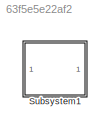
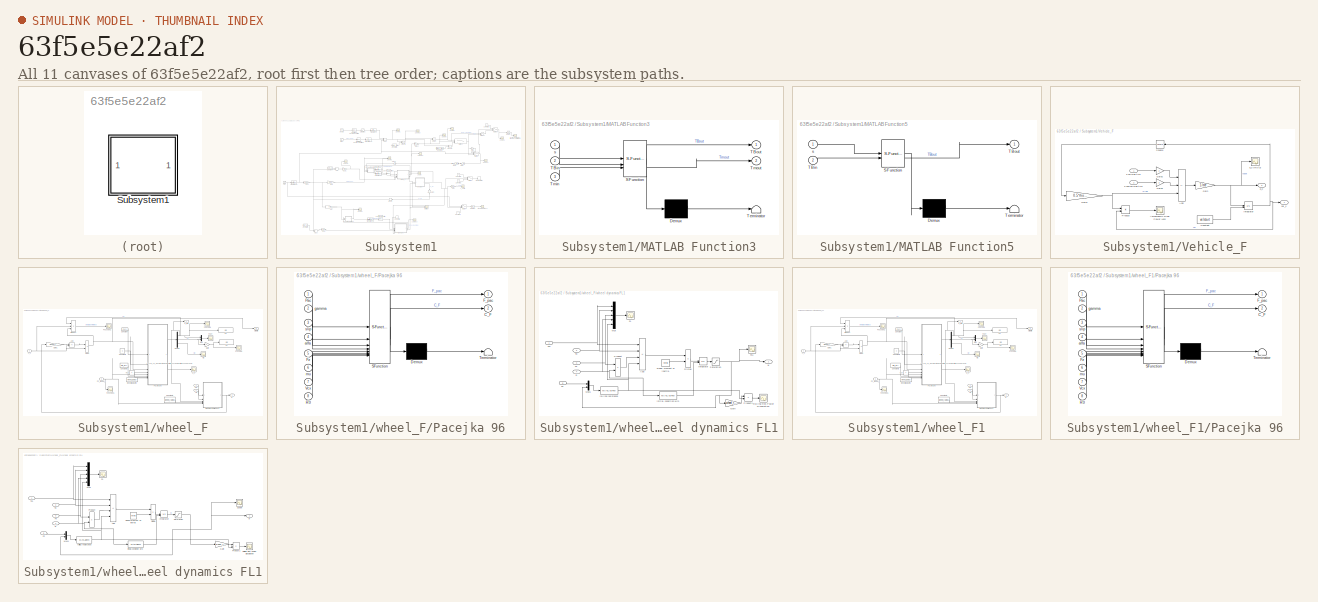
[diagram: thumbnail index - all 11 canvases of the model, root first then tree order]
MODEL slx_63f5e5e22af2
KIND model
CONFIG AbsTol = auto
CONFIG EnableMultiTasking = off
CONFIG FixedStep = 0.001
CONFIG MaxStep = auto
CONFIG MinStep = auto
CONFIG RelTol = 1e-3
CONFIG SampleTimeConstraint = Unconstrained
CONFIG SolverName = ode4
CONFIG StartTime = 0.0
CONFIG StopTime = 200
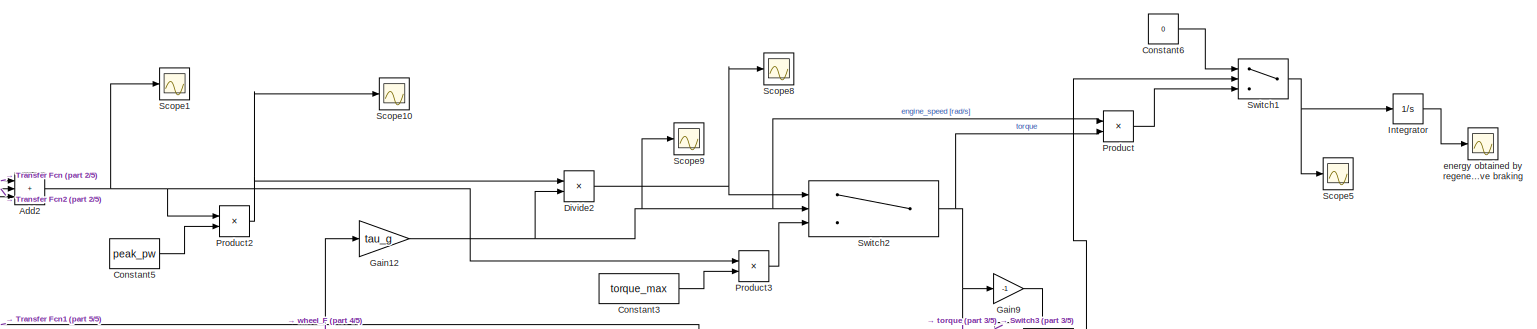
[diagram: Subsystem1 - part 1/5, top right region]
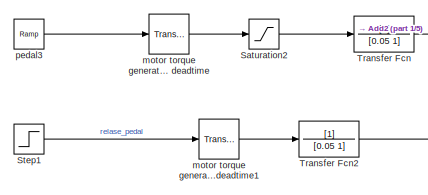
[diagram: Subsystem1 - part 2/5, top left region]
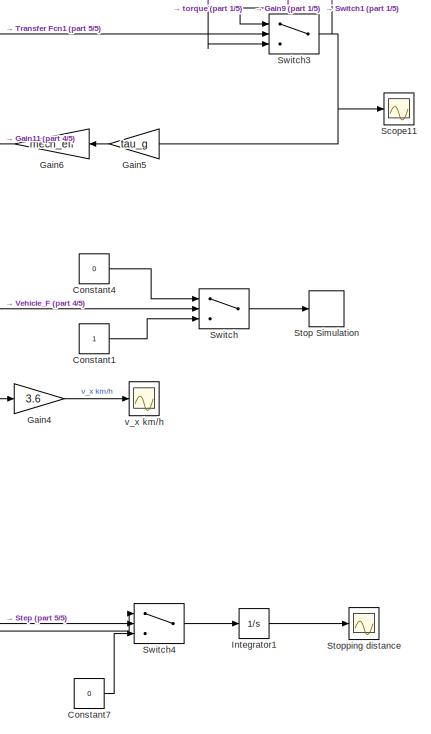
[diagram: Subsystem1 - part 3/5, middle right region]
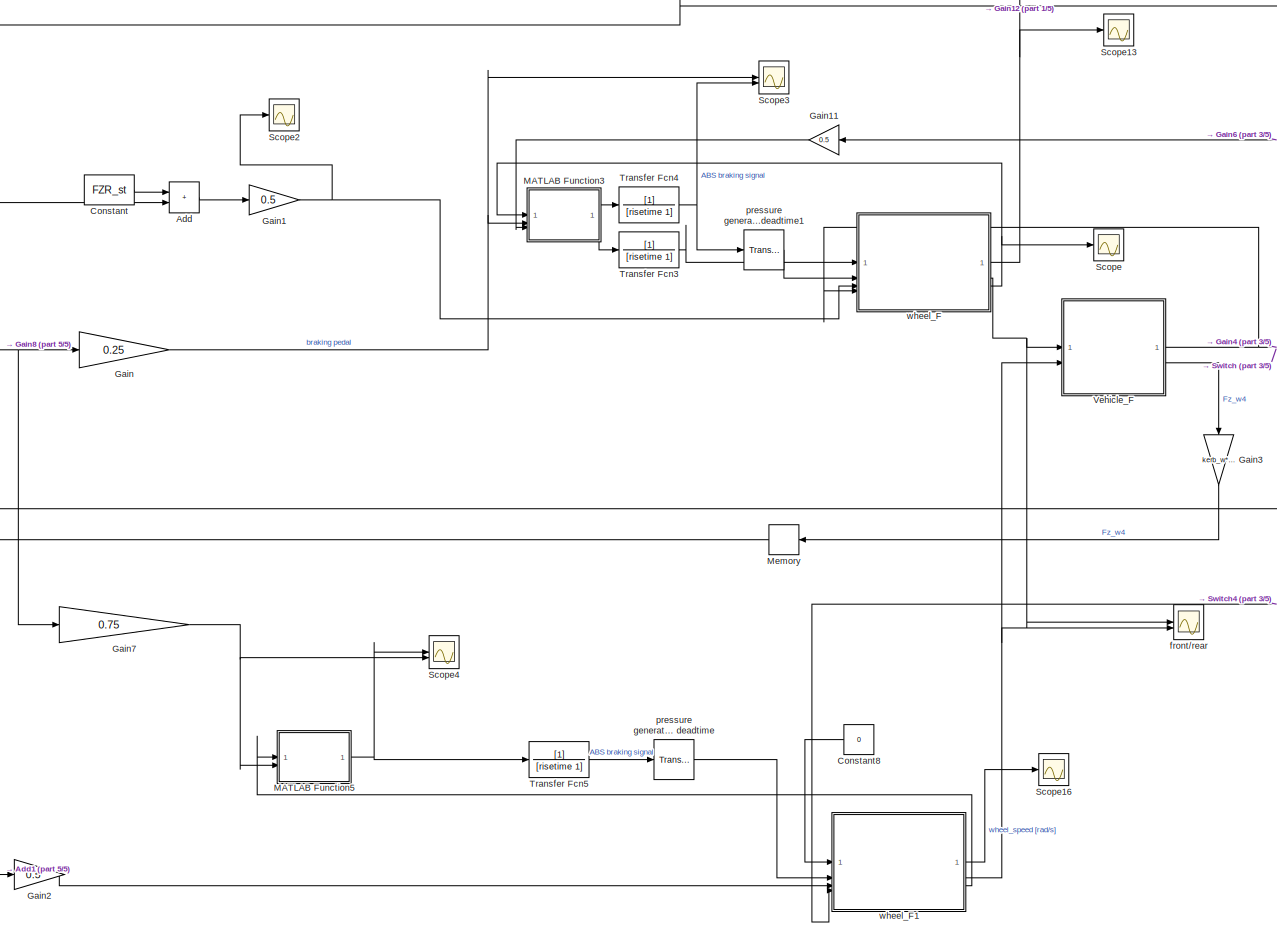
[diagram: Subsystem1 - part 4/5, center side, full height]
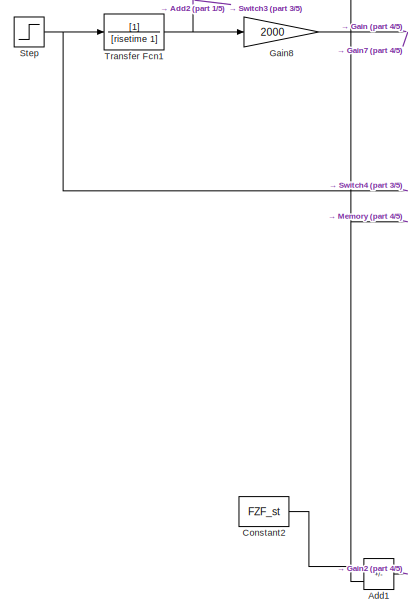
[diagram: Subsystem1 - part 5/5, bottom left region]
BLOCK [SubSystem] Subsystem1
BLOCK [TransportDelay] Subsystem1/ motor torque generation deadtime
  DelayTime = 0.02
BLOCK [TransportDelay] Subsystem1/ motor torque generation deadtime1
  DelayTime = 0.02
BLOCK [TransportDelay] Subsystem1/ pressure generation deadtime
  DelayTime = 0.02
BLOCK [TransportDelay] Subsystem1/ pressure generation deadtime1
  DelayTime = 0.02
BLOCK [Sum] Subsystem1/Add
  IconShape = rectangular
BLOCK [Sum] Subsystem1/Add1
  IconShape = rectangular
  Inputs = +-
BLOCK [Sum] Subsystem1/Add2
  IconShape = rectangular
  Inputs = +++
BLOCK [Constant] Subsystem1/Constant
  Value = FZR_st
BLOCK [Constant] Subsystem1/Constant1
BLOCK [Constant] Subsystem1/Constant2
  Value = FZF_st
BLOCK [Constant] Subsystem1/Constant3
  Value = torque_max
  VectorParams1D = off
BLOCK [Constant] Subsystem1/Constant4
  Value = 0
BLOCK [Constant] Subsystem1/Constant5
  Value = peak_pw
  VectorParams1D = off
BLOCK [Constant] Subsystem1/Constant6
  Value = 0
BLOCK [Constant] Subsystem1/Constant7
  Value = 0
BLOCK [Constant] Subsystem1/Constant8
  Value = 0
BLOCK [Product] Subsystem1/Divide2
  Inputs = */
BLOCK [Gain] Subsystem1/Gain
  Gain = 0.25
BLOCK [Gain] Subsystem1/Gain1
  Gain = 0.5
BLOCK [Gain] Subsystem1/Gain11
  Gain = 0.5
BLOCK [Gain] Subsystem1/Gain12
  Gain = tau_g
BLOCK [Gain] Subsystem1/Gain2
  Gain = 0.5
BLOCK [Gain] Subsystem1/Gain3
  Gain = kerb_w*cog/wheelbase
  NameLocation = left
BLOCK [Gain] Subsystem1/Gain4
  Gain = 3.6
BLOCK [Gain] Subsystem1/Gain5
  Gain = tau_g
BLOCK [Gain] Subsystem1/Gain6
  Gain = mech_eff
BLOCK [Gain] Subsystem1/Gain7
  Gain = 0.75
BLOCK [Gain] Subsystem1/Gain8
  Gain = 2000
BLOCK [Gain] Subsystem1/Gain9
  Gain = -1
BLOCK [Integrator] Subsystem1/Integrator
BLOCK [Integrator] Subsystem1/Integrator1
BLOCK [SubSystem] Subsystem1/MATLAB Function3
  ErrorFcn = Stateflow.Translate.translate
  PermitHierarchicalResolution = ExplicitOnly
  SFBlockType = MATLAB Function
  TreatAsAtomicUnit = on
BLOCK [Demux] Subsystem1/MATLAB Function3/ Demux 
  Outputs = 1
BLOCK [S-Function] Subsystem1/MATLAB Function3/ SFunction 
  EnableBusSupport = on
  FunctionName = sf_sfun
  PortCounts = [3 3]
  SFcnIsStateOwnerBlock = off
  SFunctionDeploymentMode = off
  Tag = Stateflow S-Function 5
BLOCK [Terminator] Subsystem1/MATLAB Function3/ Terminator 
BLOCK [Inport] Subsystem1/MATLAB Function3/TBin
  Port = 2
BLOCK [Outport] Subsystem1/MATLAB Function3/TBout
BLOCK [Inport] Subsystem1/MATLAB Function3/Tmin
  Port = 3
BLOCK [Outport] Subsystem1/MATLAB Function3/Tmout
  Port = 2
BLOCK [Inport] Subsystem1/MATLAB Function3/s
BLOCK [SubSystem] Subsystem1/MATLAB Function5
  ErrorFcn = Stateflow.Translate.translate
  PermitHierarchicalResolution = ExplicitOnly
  SFBlockType = MATLAB Function
  TreatAsAtomicUnit = on
BLOCK [Demux] Subsystem1/MATLAB Function5/ Demux 
  Outputs = 1
BLOCK [S-Function] Subsystem1/MATLAB Function5/ SFunction 
  EnableBusSupport = on
  FunctionName = sf_sfun
  PortCounts = [2 2]
  SFcnIsStateOwnerBlock = off
  SFunctionDeploymentMode = off
  Tag = Stateflow S-Function 7
BLOCK [Terminator] Subsystem1/MATLAB Function5/ Terminator 
BLOCK [Inport] Subsystem1/MATLAB Function5/TBin
  Port = 2
BLOCK [Outport] Subsystem1/MATLAB Function5/TBout
BLOCK [Inport] Subsystem1/MATLAB Function5/s
BLOCK [Memory] Subsystem1/Memory
BLOCK [Product] Subsystem1/Product
BLOCK [Product] Subsystem1/Product2
BLOCK [Product] Subsystem1/Product3
BLOCK [Saturate] Subsystem1/Saturation2
  LowerLimit = 0
  UpperLimit = 1
BLOCK [Scope] Subsystem1/Scope
  Floating = off
  NumInputPorts = 1
  ScopeSpecificationString = Simulink.scopes.TimeScopeBlockCfg('CurrentConfiguration', extmgr.ConfigurationSet(extmgr.Configuration('Core','General UI',true),extmgr.Configuration('Core','Source UI',true),extmgr.Configuration('Sources','WiredSimulink',true,'DataLoggingVariableName','ScopeData1'),extmgr.Configuration('Visuals','Time Domain',true,'SerializedDisplays',{struct('MinYLimReal','-1.43321','MaxYLimReal','0.22406','YLab...<+1387ch>
BLOCK [Scope] Subsystem1/Scope1
  Floating = off
  NumInputPorts = 1
  ScopeSpecificationString = Simulink.scopes.TimeScopeBlockCfg('CurrentConfiguration', extmgr.ConfigurationSet(extmgr.Configuration('Core','General UI',true),extmgr.Configuration('Core','Source UI',true),extmgr.Configuration('Sources','WiredSimulink',true,'DataLoggingVariableName','ScopeData4'),extmgr.Configuration('Visuals','Time Domain',true,'SerializedDisplays',{struct('MinYLimReal','-0.19297','MaxYLimReal','1.7367','YLabe...<+1409ch>
BLOCK [Scope] Subsystem1/Scope10
  Floating = off
  NumInputPorts = 1
  ScopeSpecificationString = Simulink.scopes.TimeScopeBlockCfg('CurrentConfiguration', extmgr.ConfigurationSet(extmgr.Configuration('Core','General UI',true),extmgr.Configuration('Core','Source UI',true),extmgr.Configuration('Sources','WiredSimulink',true,'DataLoggingVariableName','ScopeData1'),extmgr.Configuration('Visuals','Time Domain',true,'SerializedDisplays',{struct('MinYLimReal','-18750.00000','MaxYLimReal','168750.000...<+1430ch>
BLOCK [Scope] Subsystem1/Scope11
  Floating = off
  NumInputPorts = 1
  ScopeSpecificationString = Simulink.scopes.TimeScopeBlockCfg('CurrentConfiguration', extmgr.ConfigurationSet(extmgr.Configuration('Core','General UI',true),extmgr.Configuration('Core','Source UI',true),extmgr.Configuration('Sources','WiredSimulink',true,'DataLoggingVariableName','ScopeData1'),extmgr.Configuration('Visuals','Time Domain',true,'SerializedDisplays',{struct('MinYLimReal','-387.5','MaxYLimReal','387.5','YLabelRe...<+1405ch>
BLOCK [Scope] Subsystem1/Scope13
  Floating = off
  NumInputPorts = 1
  ScopeSpecificationString = Simulink.scopes.TimeScopeBlockCfg('CurrentConfiguration', extmgr.ConfigurationSet(extmgr.Configuration('Core','General UI',true),extmgr.Configuration('Core','Source UI',true),extmgr.Configuration('Sources','WiredSimulink',true,'DataLoggingVariableName','ScopeData2'),extmgr.Configuration('Visuals','Time Domain',true,'SerializedDisplays',{struct('MinYLimReal','-13.65751','MaxYLimReal','124.09508','Y...<+1407ch>
BLOCK [Scope] Subsystem1/Scope16
  Floating = off
  NumInputPorts = 1
  ScopeSpecificationString = Simulink.scopes.TimeScopeBlockCfg('CurrentConfiguration', extmgr.ConfigurationSet(extmgr.Configuration('Core','General UI',true),extmgr.Configuration('Core','Source UI',true),extmgr.Configuration('Sources','WiredSimulink',true,'DataLoggingVariableName','ScopeData4'),extmgr.Configuration('Visuals','Time Domain',true,'SerializedDisplays',{struct('MinYLimReal','-12.15946','MaxYLimReal','109.4351','YL...<+1384ch>
BLOCK [Scope] Subsystem1/Scope2
  Floating = off
  NumInputPorts = 1
  ScopeSpecificationString = Simulink.scopes.TimeScopeBlockCfg('CurrentConfiguration', extmgr.ConfigurationSet(extmgr.Configuration('Core','General UI',true),extmgr.Configuration('Core','Source UI',true),extmgr.Configuration('Sources','WiredSimulink',true,'DataLoggingVariableName','ScopeData2'),extmgr.Configuration('Visuals','Time Domain',true),extmgr.Configuration('Tools','Plot Navigation',true),extmgr.Configuration('Tools',...<+40ch>  <repeated x3 — deduplicated; at blocks: Scope2, Fx, Fy>
BLOCK [Scope] Subsystem1/Scope3
  Floating = off
  NumInputPorts = 2
  ScopeSpecificationString = Simulink.scopes.TimeScopeBlockCfg('CurrentConfiguration', extmgr.ConfigurationSet(extmgr.Configuration('Core','General UI',true),extmgr.Configuration('Core','Source UI',true),extmgr.Configuration('Sources','WiredSimulink',true,'DataLoggingVariableName','ScopeData1'),extmgr.Configuration('Visuals','Time Domain',true,'SerializedDisplays',{struct('MinYLimReal','196.17225','MaxYLimReal','519.13876','Y...<+1506ch>
BLOCK [Scope] Subsystem1/Scope4
  Floating = off
  NumInputPorts = 2
  ScopeSpecificationString = Simulink.scopes.TimeScopeBlockCfg('CurrentConfiguration', extmgr.ConfigurationSet(extmgr.Configuration('Core','General UI',true),extmgr.Configuration('Core','Source UI',true),extmgr.Configuration('Sources','WiredSimulink',true,'DataLoggingVariableName','ScopeData2'),extmgr.Configuration('Visuals','Time Domain',true,'SerializedDisplays',{struct('MinYLimReal','-62.9085','MaxYLimReal','1575.1634','YL...<+1410ch>
BLOCK [Scope] Subsystem1/Scope5
  Floating = off
  NumInputPorts = 1
  ScopeSpecificationString = Simulink.scopes.TimeScopeBlockCfg('CurrentConfiguration', extmgr.ConfigurationSet(extmgr.Configuration('Core','General UI',true),extmgr.Configuration('Core','Source UI',true),extmgr.Configuration('Sources','WiredSimulink',true,'DataLoggingVariableName','ScopeData3'),extmgr.Configuration('Visuals','Time Domain',true,'SerializedDisplays',{struct('MinYLimReal','-28944.99165','MaxYLimReal','260504.924...<+1433ch>
BLOCK [Scope] Subsystem1/Scope8
  Floating = off
  NumInputPorts = 1
  ScopeSpecificationString = Simulink.scopes.TimeScopeBlockCfg('CurrentConfiguration', extmgr.ConfigurationSet(extmgr.Configuration('Core','General UI',true),extmgr.Configuration('Core','Source UI',true),extmgr.Configuration('Sources','WiredSimulink',true,'DataLoggingVariableName','ScopeData2'),extmgr.Configuration('Visuals','Time Domain',true,'SerializedDisplays',{struct('MinYLimReal','-10151453.74717','MaxYLimReal','1792940...<+1466ch>
BLOCK [Scope] Subsystem1/Scope9
  Floating = off
  NumInputPorts = 1
  ScopeSpecificationString = Simulink.scopes.TimeScopeBlockCfg('CurrentConfiguration', extmgr.ConfigurationSet(extmgr.Configuration('Core','General UI',true),extmgr.Configuration('Core','Source UI',true),extmgr.Configuration('Sources','WiredSimulink',true,'DataLoggingVariableName','ScopeData3'),extmgr.Configuration('Visuals','Time Domain',true,'SerializedDisplays',{struct('MinYLimReal','-143.09859','MaxYLimReal','1302.96379',...<+1445ch>
BLOCK [Step] Subsystem1/Step
  SampleTime = 0
  Time = 50
BLOCK [Step] Subsystem1/Step1
  After = -1
  SampleTime = 0
  Time = 50
BLOCK [Stop] Subsystem1/Stop Simulation
BLOCK [Scope] Subsystem1/Stopping distance
  Floating = off
  NumInputPorts = 1
  ScopeSpecificationString = Simulink.scopes.TimeScopeBlockCfg('CurrentConfiguration', extmgr.ConfigurationSet(extmgr.Configuration('Core','General UI',true),extmgr.Configuration('Core','Source UI',true),extmgr.Configuration('Sources','WiredSimulink',true,'DataLoggingVariableName','ScopeData1'),extmgr.Configuration('Visuals','Time Domain',true,'SerializedDisplays',{struct('MinYLimReal','112.29523','MaxYLimReal','118.69615','Y...<+1749ch>
BLOCK [Switch] Subsystem1/Switch
  Criteria = u2 > Threshold
  InputSameDT = off
  SaturateOnIntegerOverflow = off
BLOCK [Switch] Subsystem1/Switch1
  Criteria = u2 > Threshold
  InputSameDT = off
  SaturateOnIntegerOverflow = off
BLOCK [Switch] Subsystem1/Switch2
  InputSameDT = off
  SaturateOnIntegerOverflow = off
  Threshold = v_base
BLOCK [Switch] Subsystem1/Switch3
  Criteria = u2 > Threshold
  InputSameDT = off
  SaturateOnIntegerOverflow = off
BLOCK [Switch] Subsystem1/Switch4
  Criteria = u2 > Threshold
  InputSameDT = off
  SaturateOnIntegerOverflow = off
BLOCK [TransferFcn] Subsystem1/Transfer Fcn
  Denominator = [0.05 1]
BLOCK [TransferFcn] Subsystem1/Transfer Fcn1
  Denominator = [risetime 1]
BLOCK [TransferFcn] Subsystem1/Transfer Fcn2
  Denominator = [0.05 1]
BLOCK [TransferFcn] Subsystem1/Transfer Fcn3
  Denominator = [risetime 1]
BLOCK [TransferFcn] Subsystem1/Transfer Fcn4
  Denominator = [risetime 1]
BLOCK [TransferFcn] Subsystem1/Transfer Fcn5
  Denominator = [risetime 1]
BLOCK [SubSystem] Subsystem1/Vehicle_F
BLOCK [Sum] Subsystem1/Vehicle_F/Add
  IconShape = rectangular
  Inputs = ++-
BLOCK [Scope] Subsystem1/Vehicle_F/Aerodynamic Drag Power Loss
  Floating = off
  NumInputPorts = 1
  ScopeSpecificationString = Simulink.scopes.TimeScopeBlockCfg('CurrentConfiguration', extmgr.ConfigurationSet(extmgr.Configuration('Core','General UI',true),extmgr.Configuration('Core','Source UI',true),extmgr.Configuration('Sources','WiredSimulink',true,'DataLoggingVariableName','ScopeData2'),extmgr.Configuration('Visuals','Time Domain',true,'SerializedDisplays',{struct('MinYLimReal','-209.00454','MaxYLimReal','1881.0445','...<+1380ch>
BLOCK [Constant] Subsystem1/Vehicle_F/Constant
  Value = velstart
BLOCK [Inport] Subsystem1/Vehicle_F/F driving tyre
BLOCK [Inport] Subsystem1/Vehicle_F/F non-driving tyre
  Port = 2
BLOCK [Gain] Subsystem1/Vehicle_F/Gain
  Gain = 1/me
BLOCK [Gain] Subsystem1/Vehicle_F/Gain1
  Gain = 0.5*rho*Cx*Af
BLOCK [Gain] Subsystem1/Vehicle_F/Gain2
  Gain = 2
BLOCK [Gain] Subsystem1/Vehicle_F/Gain3
  Gain = 2
BLOCK [Integrator] Subsystem1/Vehicle_F/Integrator
  InitialConditionSource = external
BLOCK [Product] Subsystem1/Vehicle_F/Product
BLOCK [Math] Subsystem1/Vehicle_F/Square
  Operator = square
BLOCK [Outport] Subsystem1/Vehicle_F/a_x
  Port = 2
BLOCK [Scope] Subsystem1/Vehicle_F/a_x [m//s^2]
  Floating = off
  NumInputPorts = 1
  ScopeSpecificationString = Simulink.scopes.TimeScopeBlockCfg('CurrentConfiguration', extmgr.ConfigurationSet(extmgr.Configuration('Core','General UI',true),extmgr.Configuration('Core','Source UI',true),extmgr.Configuration('Sources','WiredSimulink',true,'DataLoggingVariableName','ScopeData9'),extmgr.Configuration('Visuals','Time Domain',true,'SerializedDisplays',{struct('MinYLimReal','-8.16219','MaxYLimReal','7.66234','YLab...<+1364ch>
BLOCK [Outport] Subsystem1/Vehicle_F/vel_x
BLOCK [Scope] Subsystem1/energy obtained by regenerative braking
  Floating = off
  NumInputPorts = 1
  ScopeSpecificationString = Simulink.scopes.TimeScopeBlockCfg('CurrentConfiguration', extmgr.ConfigurationSet(extmgr.Configuration('Core','General UI',true),extmgr.Configuration('Core','Source UI',true),extmgr.Configuration('Sources','WiredSimulink',true,'DataLoggingVariableName','ScopeData3'),extmgr.Configuration('Visuals','Time Domain',true,'SerializedDisplays',{struct('MinYLimReal','-4404.07313','MaxYLimReal','39636.65815...<+1447ch>
BLOCK [Scope] Subsystem1/front//rear 
  Floating = off
  NumInputPorts = 2
  ScopeSpecificationString = Simulink.scopes.TimeScopeBlockCfg('CurrentConfiguration', extmgr.ConfigurationSet(extmgr.Configuration('Core','General UI',true),extmgr.Configuration('Core','Source UI',true),extmgr.Configuration('Sources','WiredSimulink',true,'DataLoggingVariableName','ScopeData2'),extmgr.Configuration('Visuals','Time Domain',true,'SerializedDisplays',{struct('MinYLimReal','-6538.00763','MaxYLimReal','7233.62863'...<+1454ch>
BLOCK [Reference] Subsystem1/pedal3  REF=simulink/Sources/Ramp
  SourceBlock = simulink/Sources/Ramp
  SourceType = Ramp
BLOCK [Scope] Subsystem1/v_x km//h
  Floating = off
  NumInputPorts = 1
  ScopeSpecificationString = Simulink.scopes.TimeScopeBlockCfg('CurrentConfiguration', extmgr.ConfigurationSet(extmgr.Configuration('Core','General UI',true),extmgr.Configuration('Core','Source UI',true),extmgr.Configuration('Sources','WiredSimulink',true,'DataLoggingVariableName','ScopeData2'),extmgr.Configuration('Visuals','Time Domain',true,'SerializedDisplays',{struct('MinYLimReal','-14.52638','MaxYLimReal','133.9974','YL...<+1425ch>
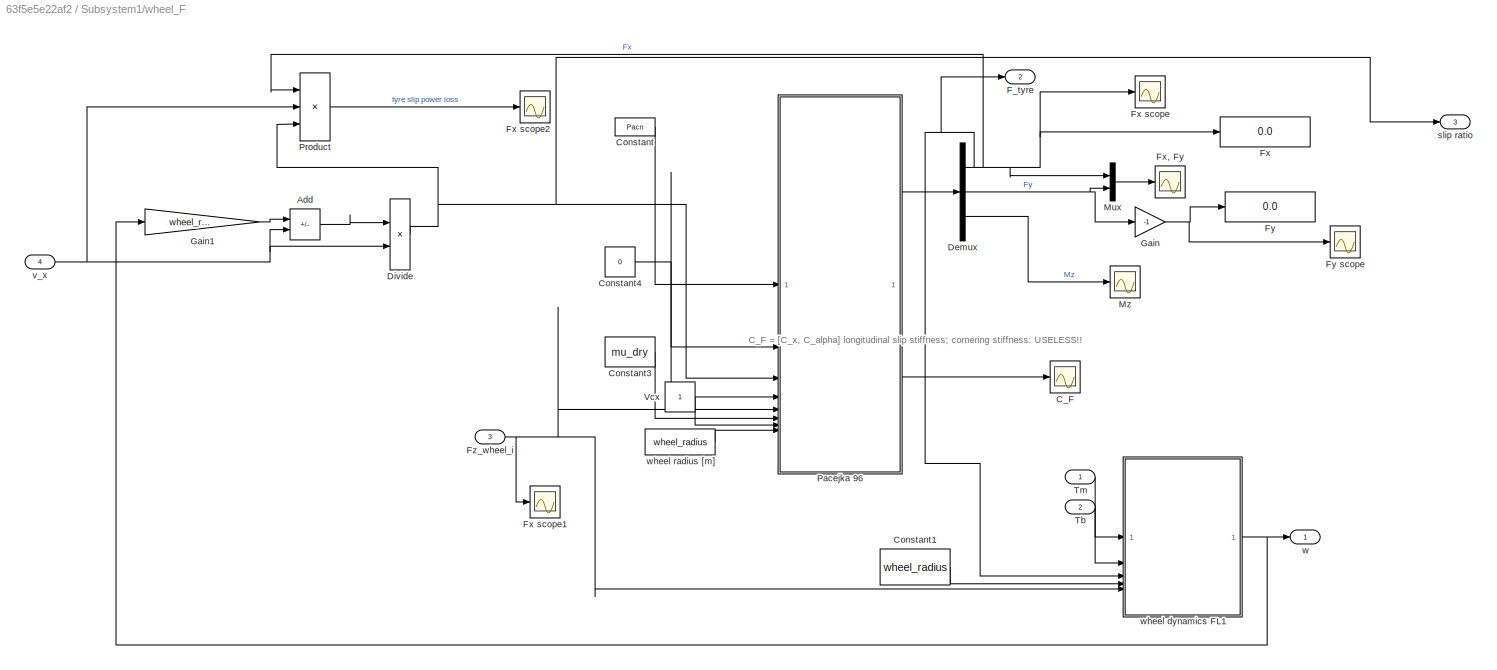
BLOCK [SubSystem] Subsystem1/wheel_F
BLOCK [Sum] Subsystem1/wheel_F/Add
  IconShape = rectangular
  Inputs = +-
BLOCK [Scope] Subsystem1/wheel_F/C_F
  Floating = off
  NumInputPorts = 1
  ScopeSpecificationString = Simulink.scopes.TimeScopeBlockCfg('CurrentConfiguration', extmgr.ConfigurationSet(extmgr.Configuration('Core','General UI',true),extmgr.Configuration('Core','Source UI',true),extmgr.Configuration('Sources','WiredSimulink',true,'DataLoggingVariableName','ScopeData1'),extmgr.Configuration('Visuals','Time Domain',true,'SerializedDisplays',{struct('MinYLimReal','-1.00000','MaxYLimReal','1.00000','YLab...<+1394ch>
BLOCK [Constant] Subsystem1/wheel_F/Constant
  Value = Pacn
BLOCK [Constant] Subsystem1/wheel_F/Constant1
  Value = wheel_radius
BLOCK [Constant] Subsystem1/wheel_F/Constant3
  Value = mu_dry
BLOCK [Constant] Subsystem1/wheel_F/Constant4
  Value = 0
BLOCK [Demux] Subsystem1/wheel_F/Demux
  Outputs = 3
BLOCK [Product] Subsystem1/wheel_F/Divide
  Inputs = */
BLOCK [Outport] Subsystem1/wheel_F/F_tyre
  Port = 2
BLOCK [Display] Subsystem1/wheel_F/Fx
  Decimation = 1
BLOCK [Scope] Subsystem1/wheel_F/Fx scope
  Floating = off
  NumInputPorts = 1
  ScopeSpecificationString = Simulink.scopes.TimeScopeBlockCfg('CurrentConfiguration', extmgr.ConfigurationSet(extmgr.Configuration('Core','General UI',true),extmgr.Configuration('Core','Source UI',true),extmgr.Configuration('Sources','WiredSimulink',true,'DataLoggingVariableName','ScopeData3'),extmgr.Configuration('Visuals','Time Domain',true,'SerializedDisplays',{struct('MinYLimReal','-7023.69008','MaxYLimReal','7084.82153'...<+1412ch>
BLOCK [Scope] Subsystem1/wheel_F/Fx scope1
  Floating = off
  NumInputPorts = 1
  ScopeSpecificationString = Simulink.scopes.TimeScopeBlockCfg('CurrentConfiguration', extmgr.ConfigurationSet(extmgr.Configuration('Core','General UI',true),extmgr.Configuration('Core','Source UI',true),extmgr.Configuration('Sources','WiredSimulink',true,'DataLoggingVariableName','ScopeData3'),extmgr.Configuration('Visuals','Time Domain',true,'SerializedDisplays',{struct('MinYLimReal','4303.10631','MaxYLimReal','5711.34318',...<+1418ch>
BLOCK [Scope] Subsystem1/wheel_F/Fx scope2
  Floating = off
  NumInputPorts = 1
  ScopeSpecificationString = Simulink.scopes.TimeScopeBlockCfg('CurrentConfiguration', extmgr.ConfigurationSet(extmgr.Configuration('Core','General UI',true),extmgr.Configuration('Core','Source UI',true),extmgr.Configuration('Sources','WiredSimulink',true,'DataLoggingVariableName','ScopeData5'),extmgr.Configuration('Visuals','Time Domain',true,'SerializedDisplays',{struct('MinYLimReal','-7610.09701','MaxYLimReal','68490.87311...<+1453ch>
BLOCK [Scope] Subsystem1/wheel_F/Fx, Fy
  Floating = off
  NumInputPorts = 1
BLOCK [Display] Subsystem1/wheel_F/Fy
  Decimation = 1
BLOCK [Scope] Subsystem1/wheel_F/Fy scope
  Floating = off
  NumInputPorts = 1
  ScopeSpecificationString = Simulink.scopes.TimeScopeBlockCfg('CurrentConfiguration', extmgr.ConfigurationSet(extmgr.Configuration('Core','General UI',true),extmgr.Configuration('Core','Source UI',true),extmgr.Configuration('Sources','WiredSimulink',true),extmgr.Configuration('Visuals','Time Domain',true,'SerializedDisplays',{struct('MinYLimReal','-1.00000','MaxYLimReal','1.00000','YLabelReal','','MinYLimMag','0.00000','MaxY...<+1324ch>
BLOCK [Inport] Subsystem1/wheel_F/Fz_wheel_i
  Port = 3
BLOCK [Gain] Subsystem1/wheel_F/Gain
  Gain = -1
BLOCK [Gain] Subsystem1/wheel_F/Gain1
  Gain = wheel_radius
BLOCK [Mux] Subsystem1/wheel_F/Mux
  DisplayOption = bar
  Inputs = 2
BLOCK [Scope] Subsystem1/wheel_F/Mz
  Floating = off
  NumInputPorts = 1
  ScopeSpecificationString = Simulink.scopes.TimeScopeBlockCfg('CurrentConfiguration', extmgr.ConfigurationSet(extmgr.Configuration('Core','General UI',true),extmgr.Configuration('Core','Source UI',true),extmgr.Configuration('Sources','WiredSimulink',true,'DataLoggingVariableName','ScopeData1'),extmgr.Configuration('Visuals','Time Domain',true),extmgr.Configuration('Tools','Plot Navigation',true),extmgr.Configuration('Tools',...<+40ch>
BLOCK [SubSystem] Subsystem1/wheel_F/Pacejka 96
  ErrorFcn = Stateflow.Translate.translate
  PermitHierarchicalResolution = ExplicitOnly
  SFBlockType = MATLAB Function
  TreatAsAtomicUnit = on
BLOCK [Demux] Subsystem1/wheel_F/Pacejka 96/ Demux 
  Outputs = 1
BLOCK [S-Function] Subsystem1/wheel_F/Pacejka 96/ SFunction 
  EnableBusSupport = on
  FunctionName = sf_sfun
  PortCounts = [8 3]
  SFcnIsStateOwnerBlock = off
  SFunctionDeploymentMode = off
  Tag = Stateflow S-Function 1
BLOCK [Terminator] Subsystem1/wheel_F/Pacejka 96/ Terminator 
BLOCK [Outport] Subsystem1/wheel_F/Pacejka 96/C_F
  Port = 2
BLOCK [Outport] Subsystem1/wheel_F/Pacejka 96/F_pac
BLOCK [Inport] Subsystem1/wheel_F/Pacejka 96/Fz
  Port = 5
BLOCK [Inport] Subsystem1/wheel_F/Pacejka 96/Pac
BLOCK [Inport] Subsystem1/wheel_F/Pacejka 96/R0
  Port = 8
BLOCK [Inport] Subsystem1/wheel_F/Pacejka 96/Vcx
  Port = 7
BLOCK [Inport] Subsystem1/wheel_F/Pacejka 96/alfa
  Port = 4
BLOCK [Inport] Subsystem1/wheel_F/Pacejka 96/gamma
  Port = 2
BLOCK [Inport] Subsystem1/wheel_F/Pacejka 96/mu
  Port = 6
BLOCK [Inport] Subsystem1/wheel_F/Pacejka 96/slip
  Port = 3
BLOCK [Product] Subsystem1/wheel_F/Product
  Inputs = 3
BLOCK [Inport] Subsystem1/wheel_F/Tb
  Port = 2
BLOCK [Inport] Subsystem1/wheel_F/Tm
BLOCK [Constant] Subsystem1/wheel_F/Vcx
BLOCK [Outport] Subsystem1/wheel_F/slip ratio
  Port = 3
BLOCK [Inport] Subsystem1/wheel_F/v_x
  Port = 4
BLOCK [Outport] Subsystem1/wheel_F/w
BLOCK [SubSystem] Subsystem1/wheel_F/wheel dynamics FL1
BLOCK [Sum] Subsystem1/wheel_F/wheel dynamics FL1/Add
  IconShape = rectangular
  Inputs = +---
BLOCK [Product] Subsystem1/wheel_F/wheel dynamics FL1/Divide
  Inputs = */
BLOCK [Scope] Subsystem1/wheel_F/wheel dynamics FL1/FL
  Floating = off
  NumInputPorts = 1
  ScopeSpecificationString = Simulink.scopes.TimeScopeBlockCfg('CurrentConfiguration', extmgr.ConfigurationSet(extmgr.Configuration('Core','General UI',true),extmgr.Configuration('Core','Source UI',true),extmgr.Configuration('Sources','WiredSimulink',true),extmgr.Configuration('Visuals','Time Domain',true,'SerializedDisplays',{struct('MinYLimReal','-1185.05178','MaxYLimReal','1441.95589','YLabelReal','','MinYLimMag','  0.0000...<+1514ch>
BLOCK [Scope] Subsystem1/wheel_F/wheel dynamics FL1/FL1
  Floating = off
  NumInputPorts = 1
  ScopeSpecificationString = Simulink.scopes.TimeScopeBlockCfg('CurrentConfiguration', extmgr.ConfigurationSet(extmgr.Configuration('Core','General UI',true),extmgr.Configuration('Core','Source UI',true),extmgr.Configuration('Sources','WiredSimulink',true,'DataLoggingVariableName','ScopeData3'),extmgr.Configuration('Visuals','Time Domain',true,'SerializedDisplays',{struct('MinYLimReal','-10.10533','MaxYLimReal','92.1255','YLa...<+1504ch>
BLOCK [Inport] Subsystem1/wheel_F/wheel dynamics FL1/Fx
  Port = 3
BLOCK [Inport] Subsystem1/wheel_F/wheel dynamics FL1/Fz
  Port = 5
BLOCK [Gain] Subsystem1/wheel_F/wheel dynamics FL1/Gain
  Gain = wheel_radius
BLOCK [Integrator] Subsystem1/wheel_F/wheel dynamics FL1/Integrator
  InitialCondition = x0
  InitialConditionSource = external
BLOCK [Mux] Subsystem1/wheel_F/wheel dynamics FL1/Mux
  DisplayOption = bar
  Inputs = 5
BLOCK [Mux] Subsystem1/wheel_F/wheel dynamics FL1/Mux1
  DisplayOption = bar
  Inputs = 2
BLOCK [Product] Subsystem1/wheel_F/wheel dynamics FL1/Product
BLOCK [Product] Subsystem1/wheel_F/wheel dynamics FL1/Product1
BLOCK [Inport] Subsystem1/wheel_F/wheel dynamics FL1/R
  Port = 4
BLOCK [Scope] Subsystem1/wheel_F/wheel dynamics FL1/Rolling Res Power Disspiation
  Floating = off
  NumInputPorts = 1
  ScopeSpecificationString = Simulink.scopes.TimeScopeBlockCfg('CurrentConfiguration', extmgr.ConfigurationSet(extmgr.Configuration('Core','General UI',true),extmgr.Configuration('Core','Source UI',true),extmgr.Configuration('Sources','WiredSimulink',true,'DataLoggingVariableName','ScopeData1'),extmgr.Configuration('Visuals','Time Domain',true,'SerializedDisplays',{struct('MinYLimReal','-208.59337','MaxYLimReal','1905.76918',...<+1385ch>
BLOCK [Saturate] Subsystem1/wheel_F/wheel dynamics FL1/Saturation
  LowerLimit = 0
  UpperLimit = inf
BLOCK [Inport] Subsystem1/wheel_F/wheel dynamics FL1/Tb
  Port = 2
BLOCK [Inport] Subsystem1/wheel_F/wheel dynamics FL1/Tm
BLOCK [MATLABFcn] Subsystem1/wheel_F/wheel dynamics FL1/initial condition wr0
  MATLABFcn = velstart/u
BLOCK [MATLABFcn] Subsystem1/wheel_F/wheel dynamics FL1/rolling resistance
  MATLABFcn = u(1)*(f0+f2*u(2)^2)
BLOCK [Outport] Subsystem1/wheel_F/wheel dynamics FL1/w
BLOCK [Constant] Subsystem1/wheel_F/wheel dynamics FL1/wheel moment of inertia
  Value = inertia
BLOCK [Constant] Subsystem1/wheel_F/wheel radius [m]
  Value = wheel_radius
BLOCK [SubSystem] Subsystem1/wheel_F1
BLOCK [Sum] Subsystem1/wheel_F1/Add
  IconShape = rectangular
  Inputs = +-
BLOCK [Scope] Subsystem1/wheel_F1/C_F
  Floating = off
  NumInputPorts = 1
  ScopeSpecificationString = Simulink.scopes.TimeScopeBlockCfg('CurrentConfiguration', extmgr.ConfigurationSet(extmgr.Configuration('Core','General UI',true),extmgr.Configuration('Core','Source UI',true),extmgr.Configuration('Sources','WiredSimulink',true,'DataLoggingVariableName','ScopeData1'),extmgr.Configuration('Visuals','Time Domain',true,'SerializedDisplays',{struct('MinYLimReal','-1.00000','MaxYLimReal','1.00000','YLab...<+1394ch>
BLOCK [Constant] Subsystem1/wheel_F1/Constant
  Value = Pacn
BLOCK [Constant] Subsystem1/wheel_F1/Constant1
  Value = wheel_radius
BLOCK [Constant] Subsystem1/wheel_F1/Constant3
  Value = mu_dry
BLOCK [Constant] Subsystem1/wheel_F1/Constant4
  Value = 0
BLOCK [Demux] Subsystem1/wheel_F1/Demux
  Outputs = 3
BLOCK [Product] Subsystem1/wheel_F1/Divide
  Inputs = */
BLOCK [Outport] Subsystem1/wheel_F1/F_tyre
  Port = 2
BLOCK [Display] Subsystem1/wheel_F1/Fx
  Decimation = 1
BLOCK [Scope] Subsystem1/wheel_F1/Fx scope
  Floating = off
  NumInputPorts = 1
  ScopeSpecificationString = Simulink.scopes.TimeScopeBlockCfg('CurrentConfiguration', extmgr.ConfigurationSet(extmgr.Configuration('Core','General UI',true),extmgr.Configuration('Core','Source UI',true),extmgr.Configuration('Sources','WiredSimulink',true,'DataLoggingVariableName','ScopeData3'),extmgr.Configuration('Visuals','Time Domain',true,'SerializedDisplays',{struct('MinYLimReal','-7023.69008','MaxYLimReal','7084.82153'...<+1412ch>
BLOCK [Scope] Subsystem1/wheel_F1/Fx scope1
  Floating = off
  NumInputPorts = 1
  ScopeSpecificationString = Simulink.scopes.TimeScopeBlockCfg('CurrentConfiguration', extmgr.ConfigurationSet(extmgr.Configuration('Core','General UI',true),extmgr.Configuration('Core','Source UI',true),extmgr.Configuration('Sources','WiredSimulink',true,'DataLoggingVariableName','ScopeData3'),extmgr.Configuration('Visuals','Time Domain',true,'SerializedDisplays',{struct('MinYLimReal','4327.78406','MaxYLimReal','5489.24349',...<+1418ch>
BLOCK [Scope] Subsystem1/wheel_F1/Fx scope2
  Floating = off
  NumInputPorts = 1
  ScopeSpecificationString = Simulink.scopes.TimeScopeBlockCfg('CurrentConfiguration', extmgr.ConfigurationSet(extmgr.Configuration('Core','General UI',true),extmgr.Configuration('Core','Source UI',true),extmgr.Configuration('Sources','WiredSimulink',true,'DataLoggingVariableName','ScopeData5'),extmgr.Configuration('Visuals','Time Domain',true,'SerializedDisplays',{struct('MinYLimReal','-4.24746','MaxYLimReal','102.36977','YL...<+1435ch>
BLOCK [Scope] Subsystem1/wheel_F1/Fx, Fy
  Floating = off
  NumInputPorts = 1
BLOCK [Display] Subsystem1/wheel_F1/Fy
  Decimation = 1
BLOCK [Scope] Subsystem1/wheel_F1/Fy scope
  Floating = off
  NumInputPorts = 1
  ScopeSpecificationString = Simulink.scopes.TimeScopeBlockCfg('CurrentConfiguration', extmgr.ConfigurationSet(extmgr.Configuration('Core','General UI',true),extmgr.Configuration('Core','Source UI',true),extmgr.Configuration('Sources','WiredSimulink',true),extmgr.Configuration('Visuals','Time Domain',true,'SerializedDisplays',{struct('MinYLimReal','-1.00000','MaxYLimReal','1.00000','YLabelReal','','MinYLimMag','0.00000','MaxY...<+1324ch>
BLOCK [Inport] Subsystem1/wheel_F1/Fz_wheel_i
  Port = 3
BLOCK [Gain] Subsystem1/wheel_F1/Gain
  Gain = -1
BLOCK [Gain] Subsystem1/wheel_F1/Gain1
  Gain = wheel_radius
BLOCK [Mux] Subsystem1/wheel_F1/Mux
  DisplayOption = bar
  Inputs = 2
BLOCK [Scope] Subsystem1/wheel_F1/Mz
  Floating = off
  NumInputPorts = 1
  ScopeSpecificationString = Simulink.scopes.TimeScopeBlockCfg('CurrentConfiguration', extmgr.ConfigurationSet(extmgr.Configuration('Core','General UI',true),extmgr.Configuration('Core','Source UI',true),extmgr.Configuration('Sources','WiredSimulink',true,'DataLoggingVariableName','ScopeData1'),extmgr.Configuration('Visuals','Time Domain',true),extmgr.Configuration('Tools','Plot Navigation',true),extmgr.Configuration('Tools',...<+40ch>
BLOCK [SubSystem] Subsystem1/wheel_F1/Pacejka 96
  ErrorFcn = Stateflow.Translate.translate
  PermitHierarchicalResolution = ExplicitOnly
  SFBlockType = MATLAB Function
  TreatAsAtomicUnit = on
BLOCK [Demux] Subsystem1/wheel_F1/Pacejka 96/ Demux 
  Outputs = 1
BLOCK [S-Function] Subsystem1/wheel_F1/Pacejka 96/ SFunction 
  EnableBusSupport = on
  FunctionName = sf_sfun
  PortCounts = [8 3]
  SFcnIsStateOwnerBlock = off
  SFunctionDeploymentMode = off
  Tag = Stateflow S-Function 8
BLOCK [Terminator] Subsystem1/wheel_F1/Pacejka 96/ Terminator 
BLOCK [Outport] Subsystem1/wheel_F1/Pacejka 96/C_F
  Port = 2
BLOCK [Outport] Subsystem1/wheel_F1/Pacejka 96/F_pac
BLOCK [Inport] Subsystem1/wheel_F1/Pacejka 96/Fz
  Port = 5
BLOCK [Inport] Subsystem1/wheel_F1/Pacejka 96/Pac
BLOCK [Inport] Subsystem1/wheel_F1/Pacejka 96/R0
  Port = 8
BLOCK [Inport] Subsystem1/wheel_F1/Pacejka 96/Vcx
  Port = 7
BLOCK [Inport] Subsystem1/wheel_F1/Pacejka 96/alfa
  Port = 4
BLOCK [Inport] Subsystem1/wheel_F1/Pacejka 96/gamma
  Port = 2
BLOCK [Inport] Subsystem1/wheel_F1/Pacejka 96/mu
  Port = 6
BLOCK [Inport] Subsystem1/wheel_F1/Pacejka 96/slip
  Port = 3
BLOCK [Product] Subsystem1/wheel_F1/Product
  Inputs = 3
BLOCK [Inport] Subsystem1/wheel_F1/Tb
  Port = 2
BLOCK [Inport] Subsystem1/wheel_F1/Tm
BLOCK [Constant] Subsystem1/wheel_F1/Vcx
BLOCK [Outport] Subsystem1/wheel_F1/slip ratio
  Port = 3
BLOCK [Inport] Subsystem1/wheel_F1/v_x
  Port = 4
BLOCK [Outport] Subsystem1/wheel_F1/w
BLOCK [SubSystem] Subsystem1/wheel_F1/wheel dynamics FL1
BLOCK [Sum] Subsystem1/wheel_F1/wheel dynamics FL1/Add
  IconShape = rectangular
  Inputs = +---
BLOCK [Product] Subsystem1/wheel_F1/wheel dynamics FL1/Divide
  Inputs = */
BLOCK [Scope] Subsystem1/wheel_F1/wheel dynamics FL1/FL
  Floating = off
  NumInputPorts = 1
  ScopeSpecificationString = Simulink.scopes.TimeScopeBlockCfg('CurrentConfiguration', extmgr.ConfigurationSet(extmgr.Configuration('Core','General UI',true),extmgr.Configuration('Core','Source UI',true),extmgr.Configuration('Sources','WiredSimulink',true),extmgr.Configuration('Visuals','Time Domain',true,'SerializedDisplays',{struct('MinYLimReal','-7059.9738','MaxYLimReal','7031.29649','YLabelReal','','MinYLimMag','  0.00000...<+1510ch>
BLOCK [Inport] Subsystem1/wheel_F1/wheel dynamics FL1/Fx
  Port = 3
BLOCK [Inport] Subsystem1/wheel_F1/wheel dynamics FL1/Fz
  Port = 5
BLOCK [Gain] Subsystem1/wheel_F1/wheel dynamics FL1/Gain
  Gain = wheel_radius
BLOCK [Integrator] Subsystem1/wheel_F1/wheel dynamics FL1/Integrator
  InitialCondition = x0
  InitialConditionSource = external
BLOCK [Mux] Subsystem1/wheel_F1/wheel dynamics FL1/Mux
  DisplayOption = bar
  Inputs = 5
BLOCK [Mux] Subsystem1/wheel_F1/wheel dynamics FL1/Mux1
  DisplayOption = bar
  Inputs = 2
BLOCK [Product] Subsystem1/wheel_F1/wheel dynamics FL1/Product
BLOCK [Product] Subsystem1/wheel_F1/wheel dynamics FL1/Product1
BLOCK [Inport] Subsystem1/wheel_F1/wheel dynamics FL1/R
  Port = 4
BLOCK [Scope] Subsystem1/wheel_F1/wheel dynamics FL1/Rolling Res Power Disspiation
  Floating = off
  NumInputPorts = 1
  ScopeSpecificationString = Simulink.scopes.TimeScopeBlockCfg('CurrentConfiguration', extmgr.ConfigurationSet(extmgr.Configuration('Core','General UI',true),extmgr.Configuration('Core','Source UI',true),extmgr.Configuration('Sources','WiredSimulink',true,'DataLoggingVariableName','ScopeData1'),extmgr.Configuration('Visuals','Time Domain',true,'SerializedDisplays',{struct('MinYLimReal','-208.59337','MaxYLimReal','1905.76918',...<+1385ch>
BLOCK [Saturate] Subsystem1/wheel_F1/wheel dynamics FL1/Saturation
  LowerLimit = 0
  UpperLimit = inf
BLOCK [Scope] Subsystem1/wheel_F1/wheel dynamics FL1/Scope
  Floating = off
  NumInputPorts = 1
  ScopeSpecificationString = Simulink.scopes.TimeScopeBlockCfg('CurrentConfiguration', extmgr.ConfigurationSet(extmgr.Configuration('Core','General UI',true),extmgr.Configuration('Core','Source UI',true),extmgr.Configuration('Sources','WiredSimulink',true,'DataLoggingVariableName','ScopeData2'),extmgr.Configuration('Visuals','Time Domain',true,'SerializedDisplays',{struct('MinYLimReal','-13.6641','MaxYLimReal','122.9769','YLa...<+1373ch>
BLOCK [Inport] Subsystem1/wheel_F1/wheel dynamics FL1/Tb
  Port = 2
BLOCK [Inport] Subsystem1/wheel_F1/wheel dynamics FL1/Tm
BLOCK [MATLABFcn] Subsystem1/wheel_F1/wheel dynamics FL1/initial condition wr0
  MATLABFcn = velstart/u
BLOCK [MATLABFcn] Subsystem1/wheel_F1/wheel dynamics FL1/rolling resistance
  MATLABFcn = u(1)*(f0+f2*u(2)^2)
BLOCK [Outport] Subsystem1/wheel_F1/wheel dynamics FL1/w
BLOCK [Constant] Subsystem1/wheel_F1/wheel dynamics FL1/wheel moment of inertia
  Value = inertia
BLOCK [Constant] Subsystem1/wheel_F1/wheel radius [m]
  Value = wheel_radius
ANNOTATION Subsystem1/wheel_F: C_F = [C_x, C_alpha] longitudinal slip stiffness; cornering stiffness: USELESS!!
ANNOTATION Subsystem1/wheel_F1: C_F = [C_x, C_alpha] longitudinal slip stiffness; cornering stiffness: USELESS!!
LINE Subsystem1/ motor torque generation deadtime1:1 -> Subsystem1/Transfer Fcn2:1
LINE Subsystem1/ motor torque generation deadtime:1 -> Subsystem1/Saturation2:1
LINE Subsystem1/ pressure generation deadtime1:1 -> Subsystem1/wheel_F:2
LINE Subsystem1/ pressure generation deadtime:1 -> Subsystem1/wheel_F1:2
LINE Subsystem1/Add1:1 -> Subsystem1/Gain2:1
NET Subsystem1/Add2:1 -> Subsystem1/Product2:1, Subsystem1/Product3:1, Subsystem1/Scope1:1
LINE Subsystem1/Add:1 -> Subsystem1/Gain1:1
LINE Subsystem1/Constant1:1 -> Subsystem1/Switch:3
LINE Subsystem1/Constant2:1 -> Subsystem1/Add1:1
LINE Subsystem1/Constant3:1 -> Subsystem1/Product3:2
LINE Subsystem1/Constant4:1 -> Subsystem1/Switch:1
LINE Subsystem1/Constant5:1 -> Subsystem1/Product2:2
LINE Subsystem1/Constant6:1 -> Subsystem1/Switch1:1
LINE Subsystem1/Constant7:1 -> Subsystem1/Switch4:3
LINE Subsystem1/Constant8:1 -> Subsystem1/wheel_F1:1
LINE Subsystem1/Constant:1 -> Subsystem1/Add:1
NET Subsystem1/Divide2:1 -> Subsystem1/Scope8:1, Subsystem1/Switch2:1
LINE Subsystem1/Gain11:1 -> Subsystem1/MATLAB Function3:3
NET Subsystem1/Gain12:1 -> Subsystem1/Divide2:2, Subsystem1/Product:1, Subsystem1/Scope9:1, Subsystem1/Switch2:2
NET Subsystem1/Gain1:1 -> Subsystem1/Scope2:1, Subsystem1/wheel_F:3
LINE Subsystem1/Gain2:1 -> Subsystem1/wheel_F1:3
LINE Subsystem1/Gain3:1 -> Subsystem1/Memory:1
LINE Subsystem1/Gain4:1 -> Subsystem1/v_x km//h:1
LINE Subsystem1/Gain5:1 -> Subsystem1/Gain6:1
LINE Subsystem1/Gain6:1 -> Subsystem1/Gain11:1
NET Subsystem1/Gain7:1 -> Subsystem1/MATLAB Function5:2, Subsystem1/Scope4:2
NET Subsystem1/Gain8:1 -> Subsystem1/Gain7:1, Subsystem1/Gain:1
LINE Subsystem1/Gain9:1 -> Subsystem1/Switch3:1
NET Subsystem1/Gain:1 -> Subsystem1/MATLAB Function3:2, Subsystem1/Scope3:1
LINE Subsystem1/Integrator1:1 -> Subsystem1/Stopping distance:1
LINE Subsystem1/Integrator:1 -> Subsystem1/energy obtained by regenerative braking:1
LINE Subsystem1/MATLAB Function3:1 -> Subsystem1/Transfer Fcn4:1
LINE Subsystem1/MATLAB Function3:2 -> Subsystem1/Transfer Fcn3:1
NET Subsystem1/MATLAB Function5:1 -> Subsystem1/Scope4:1, Subsystem1/Transfer Fcn5:1
NET Subsystem1/Memory:1 -> Subsystem1/Add1:2, Subsystem1/Add:2
NET Subsystem1/Product2:1 -> Subsystem1/Divide2:1, Subsystem1/Scope10:1
LINE Subsystem1/Product3:1 -> Subsystem1/Switch2:3
LINE Subsystem1/Product:1 -> Subsystem1/Switch1:3
LINE Subsystem1/Saturation2:1 -> Subsystem1/Transfer Fcn:1
LINE Subsystem1/Step1:1 -> Subsystem1/ motor torque generation deadtime1:1
NET Subsystem1/Step:1 -> Subsystem1/Switch4:2, Subsystem1/Transfer Fcn1:1
NET Subsystem1/Switch1:1 -> Subsystem1/Integrator:1, Subsystem1/Scope5:1
NET Subsystem1/Switch2:1 -> Subsystem1/Gain9:1, Subsystem1/Product:2, Subsystem1/Switch3:3
NET Subsystem1/Switch3:1 -> Subsystem1/Gain5:1, Subsystem1/Scope11:1, Subsystem1/Switch1:2
LINE Subsystem1/Switch4:1 -> Subsystem1/Integrator1:1
LINE Subsystem1/Switch:1 -> Subsystem1/Stop Simulation:1
NET Subsystem1/Transfer Fcn1:1 -> Subsystem1/Add2:3, Subsystem1/Gain8:1, Subsystem1/Switch3:2
LINE Subsystem1/Transfer Fcn2:1 -> Subsystem1/Add2:2
LINE Subsystem1/Transfer Fcn3:1 -> Subsystem1/wheel_F:1
NET Subsystem1/Transfer Fcn4:1 -> Subsystem1/ pressure generation deadtime1:1, Subsystem1/Scope3:2
LINE Subsystem1/Transfer Fcn5:1 -> Subsystem1/ pressure generation deadtime:1
LINE Subsystem1/Transfer Fcn:1 -> Subsystem1/Add2:1
LINE Subsystem1/Vehicle_F/Add:1 -> Subsystem1/Vehicle_F/Gain:1
LINE Subsystem1/Vehicle_F/Constant:1 -> Subsystem1/Vehicle_F/Integrator:2
LINE Subsystem1/Vehicle_F/F driving tyre:1 -> Subsystem1/Vehicle_F/Gain2:1
LINE Subsystem1/Vehicle_F/F non-driving tyre:1 -> Subsystem1/Vehicle_F/Gain3:1
NET Subsystem1/Vehicle_F/Gain1:1 -> Subsystem1/Vehicle_F/Add:3, Subsystem1/Vehicle_F/Product:1
LINE Subsystem1/Vehicle_F/Gain2:1 -> Subsystem1/Vehicle_F/Add:1
LINE Subsystem1/Vehicle_F/Gain3:1 -> Subsystem1/Vehicle_F/Add:2
NET Subsystem1/Vehicle_F/Gain:1 -> Subsystem1/Vehicle_F/Integrator:1, Subsystem1/Vehicle_F/a_x [m//s^2]:1, Subsystem1/Vehicle_F/a_x:1
NET Subsystem1/Vehicle_F/Integrator:1 -> Subsystem1/Vehicle_F/Product:2, Subsystem1/Vehicle_F/Square:1, Subsystem1/Vehicle_F/vel_x:1
LINE Subsystem1/Vehicle_F/Product:1 -> Subsystem1/Vehicle_F/Aerodynamic Drag Power Loss:1
LINE Subsystem1/Vehicle_F/Square:1 -> Subsystem1/Vehicle_F/Gain1:1
NET Subsystem1/Vehicle_F:1 -> Subsystem1/Gain4:1, Subsystem1/Switch4:1, Subsystem1/Switch:2, Subsystem1/wheel_F1:4, Subsystem1/wheel_F:4
LINE Subsystem1/Vehicle_F:2 -> Subsystem1/Gain3:1
LINE Subsystem1/pedal3:1 -> Subsystem1/ motor torque generation deadtime:1
LINE Subsystem1/wheel_F/Add:1 -> Subsystem1/wheel_F/Divide:1
LINE Subsystem1/wheel_F/Constant1:1 -> Subsystem1/wheel_F/wheel dynamics FL1:4
LINE Subsystem1/wheel_F/Constant3:1 -> Subsystem1/wheel_F/Pacejka 96:6
NET Subsystem1/wheel_F/Constant4:1 -> Subsystem1/wheel_F/Pacejka 96:2, Subsystem1/wheel_F/Pacejka 96:4
LINE Subsystem1/wheel_F/Constant:1 -> Subsystem1/wheel_F/Pacejka 96:1
NET Subsystem1/wheel_F/Demux:1 -> Subsystem1/wheel_F/F_tyre:1, Subsystem1/wheel_F/Fx scope:1, Subsystem1/wheel_F/Fx:1, Subsystem1/wheel_F/Mux:1, Subsystem1/wheel_F/Product:1, Subsystem1/wheel_F/wheel dynamics FL1:3
NET Subsystem1/wheel_F/Demux:2 -> Subsystem1/wheel_F/Gain:1, Subsystem1/wheel_F/Mux:2
LINE Subsystem1/wheel_F/Demux:3 -> Subsystem1/wheel_F/Mz:1
NET Subsystem1/wheel_F/Divide:1 -> Subsystem1/wheel_F/Pacejka 96:3, Subsystem1/wheel_F/Product:3, Subsystem1/wheel_F/slip ratio:1
NET Subsystem1/wheel_F/Fz_wheel_i:1 -> Subsystem1/wheel_F/Fx scope1:1, Subsystem1/wheel_F/Pacejka 96:5, Subsystem1/wheel_F/wheel dynamics FL1:5
LINE Subsystem1/wheel_F/Gain1:1 -> Subsystem1/wheel_F/Add:1
NET Subsystem1/wheel_F/Gain:1 -> Subsystem1/wheel_F/Fy scope:1, Subsystem1/wheel_F/Fy:1
LINE Subsystem1/wheel_F/Mux:1 -> Subsystem1/wheel_F/Fx, Fy:1
LINE Subsystem1/wheel_F/Pacejka 96:1 -> Subsystem1/wheel_F/Demux:1
LINE Subsystem1/wheel_F/Pacejka 96:2 -> Subsystem1/wheel_F/C_F:1
LINE Subsystem1/wheel_F/Product:1 -> Subsystem1/wheel_F/Fx scope2:1
LINE Subsystem1/wheel_F/Tb:1 -> Subsystem1/wheel_F/wheel dynamics FL1:2
LINE Subsystem1/wheel_F/Tm:1 -> Subsystem1/wheel_F/wheel dynamics FL1:1
LINE Subsystem1/wheel_F/Vcx:1 -> Subsystem1/wheel_F/Pacejka 96:7
NET Subsystem1/wheel_F/v_x:1 -> Subsystem1/wheel_F/Add:2, Subsystem1/wheel_F/Divide:2, Subsystem1/wheel_F/Product:2
LINE Subsystem1/wheel_F/wheel dynamics FL1/Add:1 -> Subsystem1/wheel_F/wheel dynamics FL1/Divide:1
LINE Subsystem1/wheel_F/wheel dynamics FL1/Divide:1 -> Subsystem1/wheel_F/wheel dynamics FL1/Integrator:1
NET Subsystem1/wheel_F/wheel dynamics FL1/Fx:1 -> Subsystem1/wheel_F/wheel dynamics FL1/Mux:3, Subsystem1/wheel_F/wheel dynamics FL1/Product:1
LINE Subsystem1/wheel_F/wheel dynamics FL1/Fz:1 -> Subsystem1/wheel_F/wheel dynamics FL1/Mux1:1
LINE Subsystem1/wheel_F/wheel dynamics FL1/Gain:1 -> Subsystem1/wheel_F/wheel dynamics FL1/Product1:1
LINE Subsystem1/wheel_F/wheel dynamics FL1/Integrator:1 -> Subsystem1/wheel_F/wheel dynamics FL1/Saturation:1
LINE Subsystem1/wheel_F/wheel dynamics FL1/Mux1:1 -> Subsystem1/wheel_F/wheel dynamics FL1/rolling resistance:1
LINE Subsystem1/wheel_F/wheel dynamics FL1/Mux:1 -> Subsystem1/wheel_F/wheel dynamics FL1/FL:1
LINE Subsystem1/wheel_F/wheel dynamics FL1/Product1:1 -> Subsystem1/wheel_F/wheel dynamics FL1/Rolling Res Power Disspiation:1
LINE Subsystem1/wheel_F/wheel dynamics FL1/Product:1 -> Subsystem1/wheel_F/wheel dynamics FL1/Add:3
NET Subsystem1/wheel_F/wheel dynamics FL1/R:1 -> Subsystem1/wheel_F/wheel dynamics FL1/Mux:4, Subsystem1/wheel_F/wheel dynamics FL1/Product:2, Subsystem1/wheel_F/wheel dynamics FL1/initial condition wr0:1
NET Subsystem1/wheel_F/wheel dynamics FL1/Saturation:1 -> Subsystem1/wheel_F/wheel dynamics FL1/FL1:1, Subsystem1/wheel_F/wheel dynamics FL1/Gain:1, Subsystem1/wheel_F/wheel dynamics FL1/Mux1:2, Subsystem1/wheel_F/wheel dynamics FL1/w:1
NET Subsystem1/wheel_F/wheel dynamics FL1/Tb:1 -> Subsystem1/wheel_F/wheel dynamics FL1/Add:2, Subsystem1/wheel_F/wheel dynamics FL1/Mux:2
NET Subsystem1/wheel_F/wheel dynamics FL1/Tm:1 -> Subsystem1/wheel_F/wheel dynamics FL1/Add:1, Subsystem1/wheel_F/wheel dynamics FL1/Mux:1
LINE Subsystem1/wheel_F/wheel dynamics FL1/initial condition wr0:1 -> Subsystem1/wheel_F/wheel dynamics FL1/Integrator:2
NET Subsystem1/wheel_F/wheel dynamics FL1/rolling resistance:1 -> Subsystem1/wheel_F/wheel dynamics FL1/Add:4, Subsystem1/wheel_F/wheel dynamics FL1/Mux:5, Subsystem1/wheel_F/wheel dynamics FL1/Product1:2
LINE Subsystem1/wheel_F/wheel dynamics FL1/wheel moment of inertia:1 -> Subsystem1/wheel_F/wheel dynamics FL1/Divide:2
NET Subsystem1/wheel_F/wheel dynamics FL1:1 -> Subsystem1/wheel_F/Gain1:1, Subsystem1/wheel_F/w:1
LINE Subsystem1/wheel_F/wheel radius [m]:1 -> Subsystem1/wheel_F/Pacejka 96:8
LINE Subsystem1/wheel_F1/Add:1 -> Subsystem1/wheel_F1/Divide:1
LINE Subsystem1/wheel_F1/Constant1:1 -> Subsystem1/wheel_F1/wheel dynamics FL1:4
LINE Subsystem1/wheel_F1/Constant3:1 -> Subsystem1/wheel_F1/Pacejka 96:6
NET Subsystem1/wheel_F1/Constant4:1 -> Subsystem1/wheel_F1/Pacejka 96:2, Subsystem1/wheel_F1/Pacejka 96:4
LINE Subsystem1/wheel_F1/Constant:1 -> Subsystem1/wheel_F1/Pacejka 96:1
NET Subsystem1/wheel_F1/Demux:1 -> Subsystem1/wheel_F1/F_tyre:1, Subsystem1/wheel_F1/Fx scope:1, Subsystem1/wheel_F1/Fx:1, Subsystem1/wheel_F1/Mux:1, Subsystem1/wheel_F1/Product:1, Subsystem1/wheel_F1/wheel dynamics FL1:3
NET Subsystem1/wheel_F1/Demux:2 -> Subsystem1/wheel_F1/Gain:1, Subsystem1/wheel_F1/Mux:2
LINE Subsystem1/wheel_F1/Demux:3 -> Subsystem1/wheel_F1/Mz:1
NET Subsystem1/wheel_F1/Divide:1 -> Subsystem1/wheel_F1/Pacejka 96:3, Subsystem1/wheel_F1/Product:3, Subsystem1/wheel_F1/slip ratio:1
NET Subsystem1/wheel_F1/Fz_wheel_i:1 -> Subsystem1/wheel_F1/Fx scope1:1, Subsystem1/wheel_F1/Pacejka 96:5, Subsystem1/wheel_F1/wheel dynamics FL1:5
LINE Subsystem1/wheel_F1/Gain1:1 -> Subsystem1/wheel_F1/Add:1
NET Subsystem1/wheel_F1/Gain:1 -> Subsystem1/wheel_F1/Fy scope:1, Subsystem1/wheel_F1/Fy:1
LINE Subsystem1/wheel_F1/Mux:1 -> Subsystem1/wheel_F1/Fx, Fy:1
LINE Subsystem1/wheel_F1/Pacejka 96:1 -> Subsystem1/wheel_F1/Demux:1
LINE Subsystem1/wheel_F1/Pacejka 96:2 -> Subsystem1/wheel_F1/C_F:1
LINE Subsystem1/wheel_F1/Product:1 -> Subsystem1/wheel_F1/Fx scope2:1
LINE Subsystem1/wheel_F1/Tb:1 -> Subsystem1/wheel_F1/wheel dynamics FL1:2
LINE Subsystem1/wheel_F1/Tm:1 -> Subsystem1/wheel_F1/wheel dynamics FL1:1
LINE Subsystem1/wheel_F1/Vcx:1 -> Subsystem1/wheel_F1/Pacejka 96:7
NET Subsystem1/wheel_F1/v_x:1 -> Subsystem1/wheel_F1/Add:2, Subsystem1/wheel_F1/Divide:2, Subsystem1/wheel_F1/Product:2
LINE Subsystem1/wheel_F1/wheel dynamics FL1/Add:1 -> Subsystem1/wheel_F1/wheel dynamics FL1/Divide:1
LINE Subsystem1/wheel_F1/wheel dynamics FL1/Divide:1 -> Subsystem1/wheel_F1/wheel dynamics FL1/Integrator:1
NET Subsystem1/wheel_F1/wheel dynamics FL1/Fx:1 -> Subsystem1/wheel_F1/wheel dynamics FL1/Mux:3, Subsystem1/wheel_F1/wheel dynamics FL1/Product:1
LINE Subsystem1/wheel_F1/wheel dynamics FL1/Fz:1 -> Subsystem1/wheel_F1/wheel dynamics FL1/Mux1:1
LINE Subsystem1/wheel_F1/wheel dynamics FL1/Gain:1 -> Subsystem1/wheel_F1/wheel dynamics FL1/Product1:1
LINE Subsystem1/wheel_F1/wheel dynamics FL1/Integrator:1 -> Subsystem1/wheel_F1/wheel dynamics FL1/Saturation:1
LINE Subsystem1/wheel_F1/wheel dynamics FL1/Mux1:1 -> Subsystem1/wheel_F1/wheel dynamics FL1/rolling resistance:1
LINE Subsystem1/wheel_F1/wheel dynamics FL1/Mux:1 -> Subsystem1/wheel_F1/wheel dynamics FL1/FL:1
LINE Subsystem1/wheel_F1/wheel dynamics FL1/Product1:1 -> Subsystem1/wheel_F1/wheel dynamics FL1/Rolling Res Power Disspiation:1
LINE Subsystem1/wheel_F1/wheel dynamics FL1/Product:1 -> Subsystem1/wheel_F1/wheel dynamics FL1/Add:3
NET Subsystem1/wheel_F1/wheel dynamics FL1/R:1 -> Subsystem1/wheel_F1/wheel dynamics FL1/Mux:4, Subsystem1/wheel_F1/wheel dynamics FL1/Product:2, Subsystem1/wheel_F1/wheel dynamics FL1/initial condition wr0:1
NET Subsystem1/wheel_F1/wheel dynamics FL1/Saturation:1 -> Subsystem1/wheel_F1/wheel dynamics FL1/Gain:1, Subsystem1/wheel_F1/wheel dynamics FL1/Mux1:2, Subsystem1/wheel_F1/wheel dynamics FL1/Scope:1, Subsystem1/wheel_F1/wheel dynamics FL1/w:1
NET Subsystem1/wheel_F1/wheel dynamics FL1/Tb:1 -> Subsystem1/wheel_F1/wheel dynamics FL1/Add:2, Subsystem1/wheel_F1/wheel dynamics FL1/Mux:2
NET Subsystem1/wheel_F1/wheel dynamics FL1/Tm:1 -> Subsystem1/wheel_F1/wheel dynamics FL1/Add:1, Subsystem1/wheel_F1/wheel dynamics FL1/Mux:1
LINE Subsystem1/wheel_F1/wheel dynamics FL1/initial condition wr0:1 -> Subsystem1/wheel_F1/wheel dynamics FL1/Integrator:2
NET Subsystem1/wheel_F1/wheel dynamics FL1/rolling resistance:1 -> Subsystem1/wheel_F1/wheel dynamics FL1/Add:4, Subsystem1/wheel_F1/wheel dynamics FL1/Mux:5, Subsystem1/wheel_F1/wheel dynamics FL1/Product1:2
LINE Subsystem1/wheel_F1/wheel dynamics FL1/wheel moment of inertia:1 -> Subsystem1/wheel_F1/wheel dynamics FL1/Divide:2
NET Subsystem1/wheel_F1/wheel dynamics FL1:1 -> Subsystem1/wheel_F1/Gain1:1, Subsystem1/wheel_F1/w:1
LINE Subsystem1/wheel_F1/wheel radius [m]:1 -> Subsystem1/wheel_F1/Pacejka 96:8
LINE Subsystem1/wheel_F1:1 -> Subsystem1/Scope16:1
NET Subsystem1/wheel_F1:2 -> Subsystem1/Vehicle_F:2, Subsystem1/front//rear :2
LINE Subsystem1/wheel_F1:3 -> Subsystem1/MATLAB Function5:1
NET Subsystem1/wheel_F:1 -> Subsystem1/Gain12:1, Subsystem1/Scope13:1
NET Subsystem1/wheel_F:2 -> Subsystem1/Vehicle_F:1, Subsystem1/front//rear :1
NET Subsystem1/wheel_F:3 -> Subsystem1/MATLAB Function3:1, Subsystem1/Scope:1
note: NET lines group one-source signal fan-out (src -> all destinations, sorted); 1:1 wires keep LINE
CHART Subsystem1/wheel_F/Pacejka 96 states=1 transitions=1
  STATE_LABEL 'eML_blk_kernel()'
  STATE_LABEL 'SCRIPT:\nfunction [F_pac,C_F] = fcn(Pac,gamma,slip,alfa,Fz,mu,Vcx,R0)\n% function for computing forces Fx, Fy and self-aligning torque Mz\n\n% Pac   -> model structure with coeff. Pacejka 96\n% slip  -> slip ratio [-] (-1:1)\n% alfa  -> slip angle [rad]\n% gamma -> camber [rad]\n% Vcx,y velocity components of tire contact point C\n\n% Structure building: Pacejka model coefficients\nPa_FZ0_ = Pac(1);\nPa_LFZ0 ...<+3608ch>'
CHART Subsystem1/MATLAB Function3 states=1 transitions=1
  STATE_LABEL 'eML_blk_kernel()'
  STATE_LABEL 'SCRIPT:\nfunction [TBout, Tmout] = ABS(s, TBin, Tmin)\n\nif TBin == 0\n    Tmout = Tmin;\n    TBout = 0;\nelse\n    if abs(s)>0.09\n    TBout = TBin/2;\n    Tmout = Tmin/2;\n    else\n    TBout = TBin;\n    Tmout = Tmin;\n    end\nend\n\n\n'
CHART Subsystem1/MATLAB Function5 states=1 transitions=1
  STATE_LABEL 'eML_blk_kernel()'
  STATE_LABEL 'SCRIPT:\nfunction TBout = ABS(s, TBin)\n\nif abs(s)>0.09\n    TBout = TBin/2;\nelse\n    TBout = TBin;\nend'
CHART Subsystem1/wheel_F1/Pacejka 96 states=1 transitions=1
  STATE_LABEL 'eML_blk_kernel()'
  STATE_LABEL 'SCRIPT:\nfunction [F_pac,C_F] = fcn(Pac,gamma,slip,alfa,Fz,mu,Vcx,R0)\n% function for computing forces Fx, Fy and self-aligning torque Mz\n\n% Pac   -> model structure with coeff. Pacejka 96\n% slip  -> slip ratio [-] (-1:1)\n% alfa  -> slip angle [rad]\n% gamma -> camber [rad]\n% Vcx,y velocity components of tire contact point C\n\n% Structure building: Pacejka model coefficients\nPa_FZ0_ = Pac(1);\nPa_LFZ0 ...<+3608ch>'
CHART  states=0 transitions=0
CHART  states=0 transitions=0
CHART  states=0 transitions=0
CHART  states=0 transitions=0
